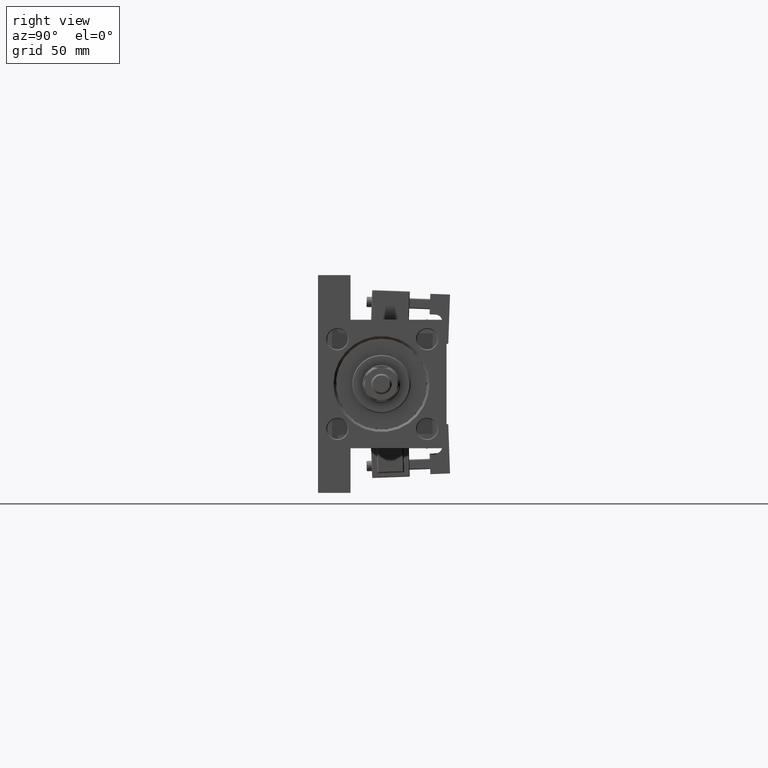
[diagram: clean part render]
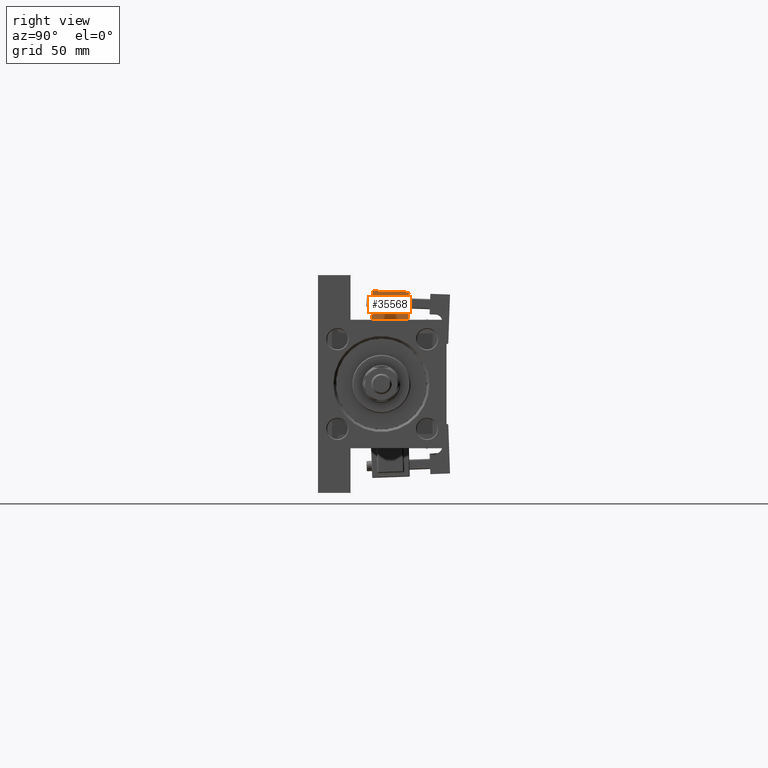
[diagram: same view with one face highlighted and labeled with its STEP entity id]
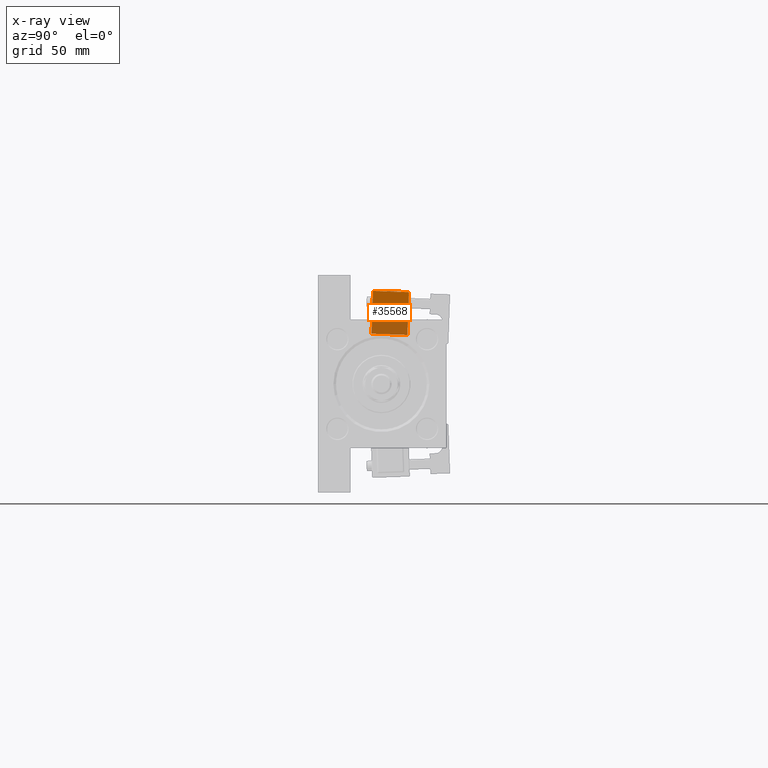
[diagram: x-ray of the same camera — body ghosted, the highlighted face saturated]
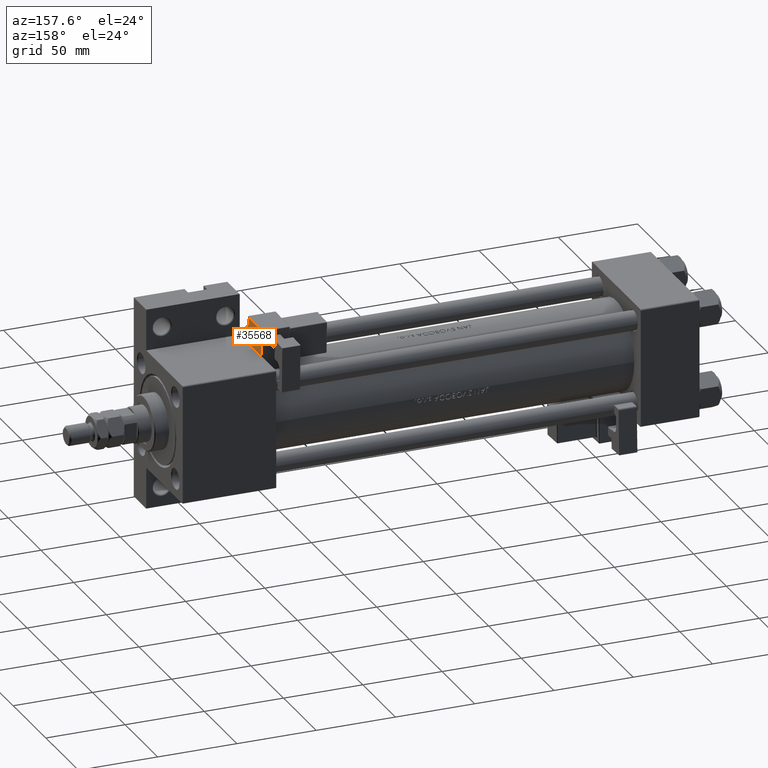
[diagram: same view with one face highlighted and labeled with its STEP entity id]
A machine part, right view. The second image highlights one B-rep face of the part: STEP entity #35568.
The next image is the same camera in x-ray: the body ghosted, the highlighted face saturated — about 34% of this face is hidden behind the body in this view.
A second angle (auxiliary view) of the same face is appended — the face is thin or edge-on in the first view.
In plain terms, the highlighted planar face has unit normal (-1, 0, 0).
Its self-contained STEP definition (entity closure, byte-faithful):
#821 = ORIENTED_EDGE ( 'NONE', *, *, #32014, .T. ) ;
#962 = CARTESIAN_POINT ( 'NONE',  ( -8.750000000000003553, -18.25000000000000355, -0.5000000000000001110 ) ) ;
#2223 = VERTEX_POINT ( 'NONE', #27371 ) ;
#3324 = CARTESIAN_POINT ( 'NONE',  ( -8.750000000000000000, -39.25000000000000000, 25.00000000000000000 ) ) ;
#5812 = DIRECTION ( 'NONE',  ( 0.000000000000000000, 1.000000000000000000, 0.000000000000000000 ) ) ;
#7514 = LINE ( 'NONE', #10666, #21282 ) ;
#10666 = CARTESIAN_POINT ( 'NONE',  ( -8.750000000000003553, -18.25000000000000355, -1.000000000000000888 ) ) ;
#13596 = VECTOR ( 'NONE', #35006, 1000.000000000000000 ) ;
#15762 = DIRECTION ( 'NONE',  ( 1.000000000000000000, 0.000000000000000000, -1.334402673828313093E-16 ) ) ;
#15806 = VERTEX_POINT ( 'NONE', #38275 ) ;
#18520 = CARTESIAN_POINT ( 'NONE',  ( -8.750000000000003553, -39.75000000000000000, -0.5000000000000004441 ) ) ;
#19644 = FACE_OUTER_BOUND ( 'NONE', #32220, .T. ) ;
#21282 = VECTOR ( 'NONE', #22837, 1000.000000000000000 ) ;
#22837 = DIRECTION ( 'NONE',  ( -1.334402673828313093E-16, 0.000000000000000000, -1.000000000000000000 ) ) ;
#25529 = VERTEX_POINT ( 'NONE', #962 ) ;
#27371 = CARTESIAN_POINT ( 'NONE',  ( -8.750000000000000000, -39.25000000000000000, 24.50000000000000000 ) ) ;
#27515 = CARTESIAN_POINT ( 'NONE',  ( -8.750000000000000000, -18.25000000000000355, 24.50000000000000000 ) ) ;
#30133 = VERTEX_POINT ( 'NONE', #27515 ) ;
#31592 = DIRECTION ( 'NONE',  ( -1.334402673828313093E-16, 0.000000000000000000, -1.000000000000000000 ) ) ;
#32014 = EDGE_CURVE ( 'NONE', #2223, #30133, #37485, .T. ) ;
#32220 = EDGE_LOOP ( 'NONE', ( #39408, #821, #34580, #48641 ) ) ;
#33525 = EDGE_CURVE ( 'NONE', #15806, #2223, #38923, .T. ) ;
#34580 = ORIENTED_EDGE ( 'NONE', *, *, #37315, .T. ) ;
#35006 = DIRECTION ( 'NONE',  ( 1.334402673828313093E-16, -0.000000000000000000, 1.000000000000000000 ) ) ;
#35497 = PLANE ( 'NONE',  #49946 ) ;
#35568 = ADVANCED_FACE ( 'NONE', ( #19644 ), #35497, .F. ) ;
#37315 = EDGE_CURVE ( 'NONE', #30133, #25529, #7514, .T. ) ;
#37485 = LINE ( 'NONE', #49460, #50060 ) ;
#38275 = CARTESIAN_POINT ( 'NONE',  ( -8.750000000000003553, -39.25000000000000000, -0.5000000000000001110 ) ) ;
#38792 = LINE ( 'NONE', #18520, #40427 ) ;
#38923 = LINE ( 'NONE', #3324, #13596 ) ;
#39035 = EDGE_CURVE ( 'NONE', #25529, #15806, #38792, .T. ) ;
#39408 = ORIENTED_EDGE ( 'NONE', *, *, #33525, .T. ) ;
#40427 = VECTOR ( 'NONE', #50725, 1000.000000000000000 ) ;
#48641 = ORIENTED_EDGE ( 'NONE', *, *, #39035, .T. ) ;
#49460 = CARTESIAN_POINT ( 'NONE',  ( -8.750000000000000000, -39.75000000000000000, 24.50000000000000000 ) ) ;
#49946 = AXIS2_PLACEMENT_3D ( 'NONE', #51353, #15762, #31592 ) ;
#50060 = VECTOR ( 'NONE', #5812, 1000.000000000000000 ) ;
#50725 = DIRECTION ( 'NONE',  ( -0.000000000000000000, -1.000000000000000000, -0.000000000000000000 ) ) ;
#51353 = CARTESIAN_POINT ( 'NONE',  ( -8.750000000000000000, -39.75000000000000000, 25.00000000000000000 ) ) ;